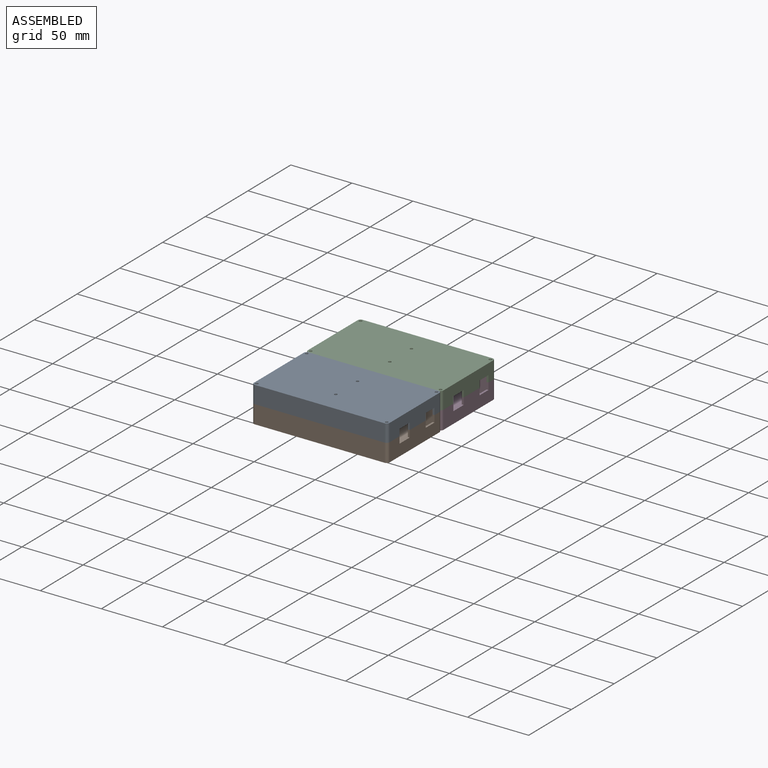
[diagram: assembled view]
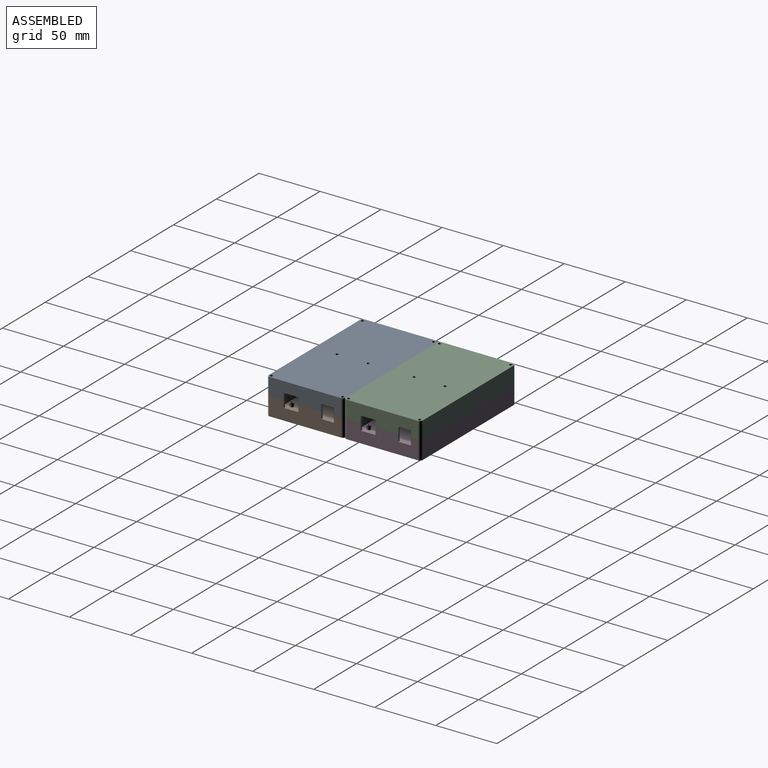
[diagram: assembled view, second angle]
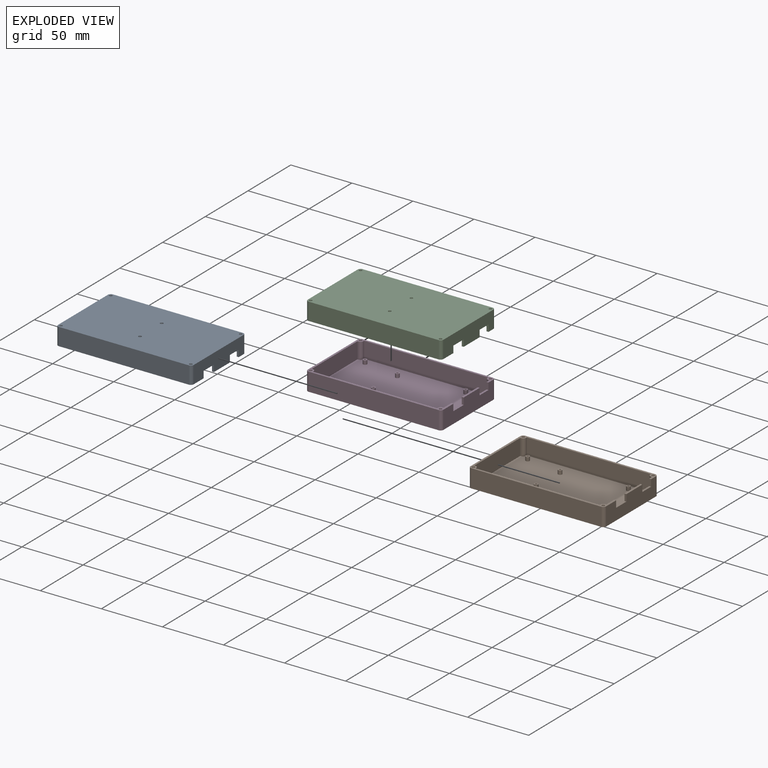
[diagram: exploded view]
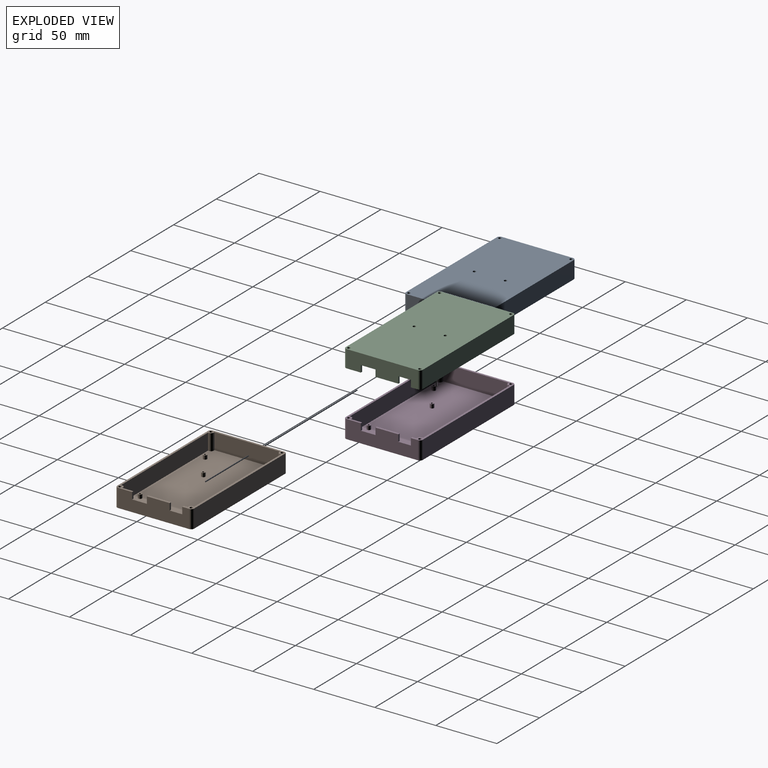
[diagram: exploded view, second angle]
ASSEMBLY  parts=4 mates=9
PART A: 50 faces, bbox 111.1x63.1x14.3 mm
  f0: plane 111.13x63.07mm, normal (0,0,-1), area 6976.9mm2, adj f2,f6,f7,f8,f23,f24,f25,f26
  f1: plane 111.13x12.48mm, normal (0,0,1), area 210.4mm2, adj f2,f3,f5,f6,f8,f16,f17,f18
  f2: plane 58.31x14.29mm, normal (-1,0,0), area 385.4mm2, adj f0,f1,f27,f30,f31,f39,f40,f41
  f3: plane 53.54x12.7mm, normal (1,0,0), area 232.3mm2, adj f1,f9,f22,f27,f28,f39,f40,f41
  f4: plane 18.67x1.59mm, normal (0,0,1), area 29.6mm2, adj f5,f6,f33,f38
  f5: plane 53.54x12.7mm, normal (-1,0,0), area 556.5mm2, adj f1,f4,f15,f16,f27,f28,f33,f34
  f6: plane 58.31x14.29mm, normal (1,0,0), area 709.6mm2, adj f0,f1,f4,f27,f29,f32,f33,f34
  f7: plane 106.36x14.29mm, normal (0,1,0), area 1519.7mm2, adj f0,f27,f29,f30
  f8: plane 106.36x14.29mm, normal (0,-1,0), area 1519.7mm2, adj f0,f1,f31,f32
  f9: plane 12.7x0.79mm, normal (0,-1,0), area 10.1mm2, adj f3,f10,f27,f28
  f10: cylinder r=2.38mm len=12.7mm, axis (0,0,-1), area 47.5mm2, adj f9,f11,f27,f28
  f11: plane 12.7x0.79mm, normal (1,0,0), area 10.1mm2, adj f10,f12,f27,f28
  f12: plane 101.6x12.7mm, normal (0,-1,0), area 1290.3mm2, adj f11,f13,f27,f28
  f13: plane 12.7x0.79mm, normal (-1,0,0), area 10.1mm2, adj f12,f14,f27,f28
  f14: cylinder r=2.38mm len=12.7mm, axis (0,0,-1), area 47.5mm2, adj f13,f15,f27,f28
  f15: plane 12.7x0.79mm, normal (0,-1,0), area 10.1mm2, adj f5,f14,f27,f28
  f16: plane 12.7x0.79mm, normal (0,1,0), area 10.1mm2, adj f1,f5,f17,f28
  f17: cylinder r=2.38mm len=12.7mm, axis (0,0,-1), area 47.5mm2, adj f1,f16,f18,f28
  f18: plane 12.7x0.79mm, normal (-1,0,0), area 10.1mm2, adj f1,f17,f19,f28
  f19: plane 101.6x12.7mm, normal (0,1,0), area 1290.3mm2, adj f1,f18,f20,f28
  f20: plane 12.7x0.79mm, normal (1,0,0), area 10.1mm2, adj f1,f19,f21,f28
  f21: cylinder r=2.38mm len=12.7mm, axis (0,0,-1), area 47.5mm2, adj f1,f20,f22,f28
  f22: plane 12.7x0.79mm, normal (0,1,0), area 10.1mm2, adj f1,f3,f21,f28
  f23: cylinder r=1.19mm len=14.29mm, axis (0,0,-1), area 106.9mm2, adj f0,f27
  f24: cylinder r=1.19mm len=14.29mm, axis (0,0,-1), area 106.9mm2, adj f0,f1
  f25: cylinder r=1.19mm len=14.29mm, axis (0,0,-1), area 106.9mm2, adj f0,f1
  f26: cylinder r=1.19mm len=14.29mm, axis (0,0,-1), area 106.9mm2, adj f0,f27
  f27: plane 111.13x13.94mm, normal (0,0,1), area 219.7mm2, adj f2,f3,f5,f6,f7,f9,f10,f11
  f28: plane 107.95x59.89mm, normal (0,0,1), area 6394.4mm2, adj f3,f5,f9,f10,f11,f12,f13,f14
  f29: cylinder r=2.38mm len=14.29mm, axis (0,0,1), area 53.4mm2, adj f0,f6,f7,f27
  f30: cylinder r=2.38mm len=14.29mm, axis (0,0,-1), area 53.4mm2, adj f0,f2,f7,f27
  f31: cylinder r=2.38mm len=14.29mm, axis (0,0,1), area 53.4mm2, adj f0,f1,f2,f8
  f32: cylinder r=2.38mm len=14.29mm, axis (0,0,-1), area 53.4mm2, adj f0,f1,f6,f8
  f33: plane 5.52x1.59mm, normal (0,1,0), area 8.8mm2, adj f4,f5,f6,f34
  f34: plane 12.07x1.59mm, normal (0,0,1), area 19.2mm2, adj f5,f6,f33,f35
  f35: plane 5.52x1.59mm, normal (0,-1,0), area 8.8mm2, adj f5,f6,f27,f34
  f36: plane 5.52x1.59mm, normal (0,1,0), area 8.8mm2, adj f1,f5,f6,f37
  f37: plane 10.29x1.59mm, normal (0,0,1), area 16.3mm2, adj f5,f6,f36,f38
  f38: plane 5.52x1.59mm, normal (0,-1,0), area 8.8mm2, adj f4,f5,f6,f37
  f39: plane 10.8x1.91mm, normal (0,-0.98,-0.17), area 17.4mm2, adj f2,f3,f27,f40
  f40: plane 41.91x1.59mm, normal (0,0,1), area 66.5mm2, adj f2,f3,f39,f41
  f41: plane 10.8x1.91mm, normal (0,0.98,-0.17), area 17.4mm2, adj f1,f2,f3,f40
  f42: cylinder r=1.59mm len=3.18mm, axis (-1,0,0), area 15.8mm2, adj f2,f3
  f43: cylinder r=1.59mm len=3.18mm, axis (-1,0,0), area 15.8mm2, adj f2,f3
  f44: cylinder r=2.38mm len=4.76mm, axis (0,0,-1), area 47.5mm2, adj f28,f45
  f45: plane 4.76x4.76mm, normal (0,0,1), area 13.4mm2, adj f44,f48
  f46: cylinder r=2.38mm len=4.76mm, axis (0,0,-1), area 47.5mm2, adj f28,f47
  f47: plane 4.76x4.76mm, normal (0,0,1), area 13.4mm2, adj f46,f49
  f48: cylinder r=1.19mm len=4.76mm, axis (0,0,1), area 35.6mm2, adj f0,f45
  f49: cylinder r=1.19mm len=4.76mm, axis (0,0,1), area 35.6mm2, adj f0,f47
PART B: 62 faces, bbox 111.1x63.1x14.9 mm
  f0: plane 111.13x63.07mm, normal (0,0,-1), area 6985.8mm2, adj f2,f3,f4,f5,f22,f23,f24,f25
  f1: plane 18.67x1.59mm, normal (0,0,1), area 29.6mm2, adj f2,f13,f32,f36
  f2: plane 58.31x14.92mm, normal (1,0,0), area 746.6mm2, adj f0,f1,f26,f28,f31,f32,f33,f34
  f3: plane 106.36x14.92mm, normal (0,1,0), area 1587.2mm2, adj f0,f26,f28,f29
  f4: plane 58.31x14.92mm, normal (-1,0,0), area 870.1mm2, adj f0,f26,f29,f30
  f5: plane 106.36x14.92mm, normal (0,-1,0), area 1587.2mm2, adj f0,f26,f30,f31
  f6: plane 13.34x0.79mm, normal (0,-1,0), area 10.6mm2, adj f7,f21,f26,f27
  f7: cylinder r=2.38mm len=13.34mm, axis (0,0,-1), area 49.9mm2, adj f6,f8,f26,f27
  f8: plane 13.34x0.79mm, normal (1,0,0), area 10.6mm2, adj f7,f9,f26,f27
  f9: plane 101.6x13.34mm, normal (0,-1,0), area 1354.8mm2, adj f8,f10,f26,f27
  f10: plane 13.34x0.79mm, normal (-1,0,0), area 10.6mm2, adj f9,f11,f26,f27
  f11: cylinder r=2.38mm len=13.34mm, axis (0,0,-1), area 49.9mm2, adj f10,f12,f26,f27
  f12: plane 13.34x0.79mm, normal (0,-1,0), area 10.6mm2, adj f11,f13,f26,f27
  f13: plane 53.54x13.34mm, normal (-1,0,0), area 590.5mm2, adj f1,f12,f14,f26,f27,f32,f33,f34
  f14: plane 13.34x0.79mm, normal (0,1,0), area 10.6mm2, adj f13,f15,f26,f27
  f15: cylinder r=2.38mm len=13.34mm, axis (0,0,-1), area 49.9mm2, adj f14,f16,f26,f27
  f16: plane 13.34x0.79mm, normal (-1,0,0), area 10.6mm2, adj f15,f17,f26,f27
  f17: plane 101.6x13.34mm, normal (0,1,0), area 1354.8mm2, adj f16,f18,f26,f27
  f18: plane 13.34x0.79mm, normal (1,0,0), area 10.6mm2, adj f17,f19,f26,f27
  f19: cylinder r=2.38mm len=13.34mm, axis (0,0,-1), area 49.9mm2, adj f18,f20,f26,f27
  f20: plane 13.34x0.79mm, normal (0,1,0), area 10.6mm2, adj f19,f21,f26,f27
  f21: plane 53.54x13.34mm, normal (1,0,0), area 714mm2, adj f6,f20,f26,f27
  f22: cylinder r=1.19mm len=14.92mm, axis (0,0,-1), area 111.6mm2, adj f0,f26
  f23: cylinder r=1.19mm len=14.92mm, axis (0,0,-1), area 111.6mm2, adj f0,f26
  f24: cylinder r=1.19mm len=14.92mm, axis (0,0,-1), area 111.6mm2, adj f0,f26
  f25: cylinder r=1.19mm len=14.92mm, axis (0,0,-1), area 111.6mm2, adj f0,f26
  f26: plane 111.13x63.07mm, normal (0,0,1), area 490.6mm2, adj f2,f3,f4,f5,f6,f7,f8,f9
  f27: plane 107.95x59.89mm, normal (0,0,1), area 6382.5mm2, adj f6,f7,f8,f9,f10,f11,f12,f13
  f28: cylinder r=2.38mm len=14.92mm, axis (0,0,1), area 55.8mm2, adj f0,f2,f3,f26
  f29: cylinder r=2.38mm len=14.92mm, axis (0,0,-1), area 55.8mm2, adj f0,f3,f4,f26
  f30: cylinder r=2.38mm len=14.92mm, axis (0,0,1), area 55.8mm2, adj f0,f4,f5,f26
  f31: cylinder r=2.38mm len=14.92mm, axis (0,0,-1), area 55.8mm2, adj f0,f2,f5,f26
  f32: plane 5.52x1.59mm, normal (0,1,0), area 8.8mm2, adj f1,f2,f13,f34
  f33: plane 5.52x1.59mm, normal (0,-1,0), area 8.8mm2, adj f2,f13,f26,f34
  f34: plane 10.29x1.59mm, normal (0,0,1), area 16.3mm2, adj f2,f13,f32,f33
  f35: plane 5.52x1.59mm, normal (0,1,0), area 8.8mm2, adj f2,f13,f26,f37
  f36: plane 5.52x1.59mm, normal (0,-1,0), area 8.8mm2, adj f1,f2,f13,f37
  f37: plane 12.07x1.59mm, normal (0,0,1), area 19.2mm2, adj f2,f13,f35,f36
  f38: cylinder r=0.79mm len=3.18mm, axis (0,0,-1), area 15.8mm2, adj f40,f41
  f39: cylinder r=1.59mm len=3.18mm, axis (0,0,-1), area 31.7mm2, adj f27,f40
  f40: plane 3.18x3.18mm, normal (0,0,1), area 5.9mm2, adj f38,f39
  f41: plane 1.59x1.59mm, normal (0,0,1), area 2mm2, adj f38
  f42: cylinder r=0.79mm len=3.18mm, axis (0,0,-1), area 15.8mm2, adj f44,f45
  f43: cylinder r=1.59mm len=3.18mm, axis (0,0,-1), area 31.7mm2, adj f27,f44
  f44: plane 3.18x3.18mm, normal (0,0,1), area 5.9mm2, adj f42,f43
  f45: plane 1.59x1.59mm, normal (0,0,1), area 2mm2, adj f42
  f46: cylinder r=0.79mm len=3.18mm, axis (0,0,-1), area 15.8mm2, adj f48,f49
  f47: cylinder r=1.59mm len=3.18mm, axis (0,0,-1), area 31.7mm2, adj f27,f48
  f48: plane 3.18x3.18mm, normal (0,0,1), area 5.9mm2, adj f46,f47
  f49: plane 1.59x1.59mm, normal (0,0,1), area 2mm2, adj f46
  f50: cylinder r=0.79mm len=3.18mm, axis (0,0,-1), area 15.8mm2, adj f52,f53
  f51: cylinder r=1.59mm len=3.18mm, axis (0,0,-1), area 31.7mm2, adj f27,f52
  f52: plane 3.18x3.18mm, normal (0,0,1), area 5.9mm2, adj f50,f51
  f53: plane 1.59x1.59mm, normal (0,0,1), area 2mm2, adj f50
  f54: cylinder r=0.79mm len=3.18mm, axis (0,0,-1), area 15.8mm2, adj f56,f57
  f55: cylinder r=1.59mm len=3.18mm, axis (0,0,-1), area 31.7mm2, adj f27,f56
  f56: plane 3.18x3.18mm, normal (0,0,1), area 5.9mm2, adj f54,f55
  f57: plane 1.59x1.59mm, normal (0,0,1), area 2mm2, adj f54
  f58: cylinder r=0.79mm len=3.18mm, axis (0,0,-1), area 15.8mm2, adj f60,f61
  f59: cylinder r=1.59mm len=3.18mm, axis (0,0,-1), area 31.7mm2, adj f27,f60
  f60: plane 3.18x3.18mm, normal (0,0,1), area 5.9mm2, adj f58,f59
  f61: plane 1.59x1.59mm, normal (0,0,1), area 2mm2, adj f58
PART C: same geometry as A
PART D: same geometry as B
PLACE A rot(axis=(1,0,0),180deg) t=(0,-63.07,29.21)mm
PLACE B t=(0,-63.07,0)mm
PLACE C rot(axis=(1,0,0),180deg) t=(0,0,29.21)mm
PLACE D at identity fixed
MATE planar A.f2 <-> B.f4  axis (-1,0,0) through (-55.56,-84.02,25.72)mm
MATE cylindrical C.f14 <-> D.f15  axis (0,0,1) through (53.18,-29.15,14.92)mm
MATE planar B.f0 <-> D.f0  axis (0,0,-1) through (0,-63.07,0)mm
MATE planar A.f1 <-> B.f19  axis (0,0,-1) through (-53.97,-36.3,14.92)mm
MATE planar A.f7 <-> B.f5  axis (0,-1,0) through (0,-94.6,22.07)mm
MATE planar B.f4 <-> D.f4  axis (-1,0,0) through (-55.56,-63.07,0)mm
MATE cylindrical C.f10 <-> D.f19  axis (0,0,1) through (-53.18,-29.15,14.92)mm
MATE planar D.f19 <-> C.f10  axis (0,0,1) through (-53.18,-29.15,14.92)mm
MATE planar B.f3 <-> D.f5  axis (0,1,0) through (0,-31.53,7.46)mm
